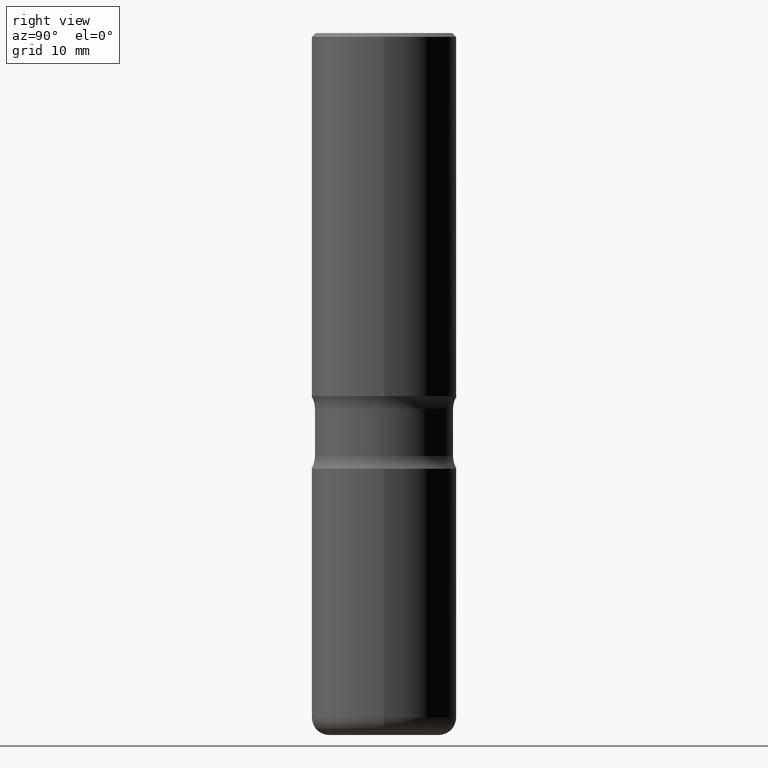
[diagram: clean part render]
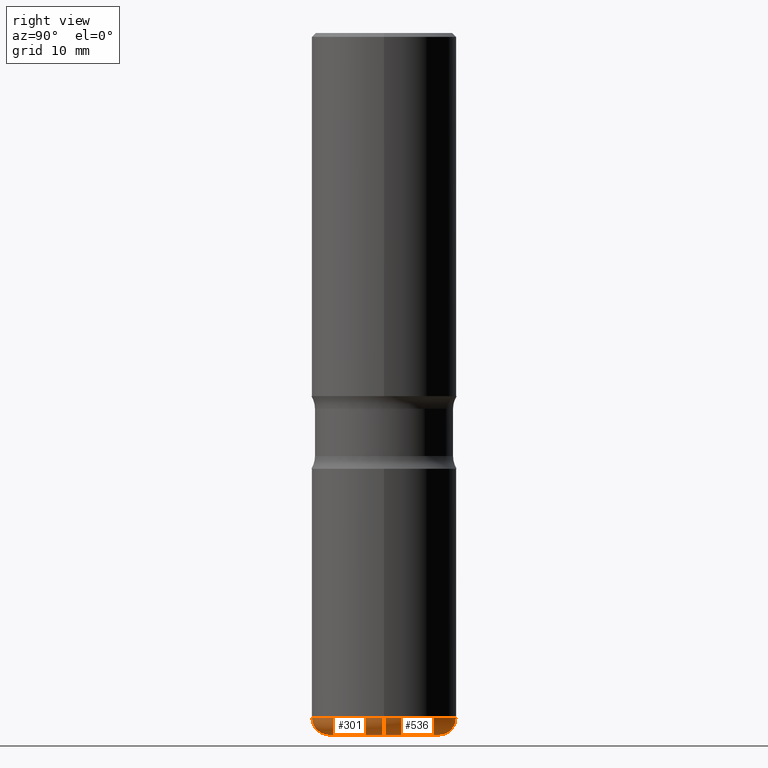
[diagram: same view with one multi-face feature highlighted, each face labeled with its STEP entity id]
A machine part, right view. The highlighted faces form ONE feature: a constant-radius fillet chain: 2 tangent blend faces with common blend radius 2.286 mm. The faces share edges in the B-rep.
Their STEP definitions:
[1] entity #536 (Torus):
#17 = EDGE_CURVE ( 'NONE', #92, #85, #174, .T. ) ;
#22 = CARTESIAN_POINT ( 'NONE',  ( -0.3750000000000002220, -9.677851273710145206E-15, -3.535000000000000586 ) ) ;
#39 = DIRECTION ( 'NONE',  ( -2.445468806185136597E-29, 3.491481338843145583E-15, 1.000000000000000000 ) ) ;
#41 = CIRCLE ( 'NONE', #168, 0.2850000000000004197 ) ;
#45 = DIRECTION ( 'NONE',  ( 1.000000000000000000, -6.982962677686265922E-15, 0.000000000000000000 ) ) ;
#52 = CIRCLE ( 'NONE', #110, 0.08999999999999962197 ) ;
#61 = DIRECTION ( 'NONE',  ( 1.000000000000000000, -6.982962677686276177E-15, 0.000000000000000000 ) ) ;
#62 = TOROIDAL_SURFACE ( 'NONE', #361, 0.2850000000000004197, 0.08999999999999963585 ) ;
#66 = CARTESIAN_POINT ( 'NONE',  ( 0.2850000000000004197, -1.433253089595111070E-14, -3.535000000000000586 ) ) ;
#69 = DIRECTION ( 'NONE',  ( -2.445468806185136597E-29, 3.491481338843145583E-15, 1.000000000000000000 ) ) ;
#85 = VERTEX_POINT ( 'NONE', #22 ) ;
#92 = VERTEX_POINT ( 'NONE', #206 ) ;
#110 = AXIS2_PLACEMENT_3D ( 'NONE', #366, #376, #560 ) ;
#146 = DIRECTION ( 'NONE',  ( 1.000000000000000000, -6.982962677686267499E-15, 4.883557194083113462E-29 ) ) ;
#150 = CARTESIAN_POINT ( 'NONE',  ( 8.644732229864458497E-29, -1.234238653281052248E-14, -3.535000000000000586 ) ) ;
#152 = CARTESIAN_POINT ( 'NONE',  ( 8.644732229864458497E-29, -1.234238653281052248E-14, -3.535000000000000586 ) ) ;
#168 = AXIS2_PLACEMENT_3D ( 'NONE', #415, #39, #373 ) ;
#174 = CIRCLE ( 'NONE', #400, 0.3750000000000003886 ) ;
#175 = CARTESIAN_POINT ( 'NONE',  ( -0.2850000000000004197, -1.015471216505013142E-14, -3.624999999999999556 ) ) ;
#184 = CIRCLE ( 'NONE', #471, 0.08999999999999962197 ) ;
#205 = VERTEX_POINT ( 'NONE', #249 ) ;
#206 = CARTESIAN_POINT ( 'NONE',  ( 0.3750000000000002220, -1.496099753694287407E-14, -3.535000000000000586 ) ) ;
#234 = EDGE_CURVE ( 'NONE', #433, #85, #52, .T. ) ;
#249 = CARTESIAN_POINT ( 'NONE',  ( 0.2850000000000004197, -1.464676421644699081E-14, -3.624999999999999556 ) ) ;
#266 = EDGE_CURVE ( 'NONE', #205, #433, #41, .T. ) ;
#270 = DIRECTION ( 'NONE',  ( -6.982962677686266711E-15, -1.000000000000000000, 3.491481338843145583E-15 ) ) ;
#336 = ORIENTED_EDGE ( 'NONE', *, *, #520, .F. ) ;
#361 = AXIS2_PLACEMENT_3D ( 'NONE', #150, #69, #146 ) ;
#366 = CARTESIAN_POINT ( 'NONE',  ( -0.2850000000000004197, -1.031733973589423436E-14, -3.535000000000000586 ) ) ;
#373 = DIRECTION ( 'NONE',  ( 1.000000000000000000, -6.982962677686264344E-15, 0.000000000000000000 ) ) ;
#376 = DIRECTION ( 'NONE',  ( 7.105427357601001859E-15, 1.000000000000000000, -3.491481338843145583E-15 ) ) ;
#392 = FACE_OUTER_BOUND ( 'NONE', #498, .T. ) ;
#400 = AXIS2_PLACEMENT_3D ( 'NONE', #152, #559, #45 ) ;
#403 = ORIENTED_EDGE ( 'NONE', *, *, #234, .T. ) ;
#408 = ORIENTED_EDGE ( 'NONE', *, *, #266, .T. ) ;
#415 = CARTESIAN_POINT ( 'NONE',  ( 8.864824422421120163E-29, -1.265661985330640259E-14, -3.624999999999999556 ) ) ;
#433 = VERTEX_POINT ( 'NONE', #175 ) ;
#471 = AXIS2_PLACEMENT_3D ( 'NONE', #66, #270, #61 ) ;
#476 = ORIENTED_EDGE ( 'NONE', *, *, #17, .F. ) ;
#498 = EDGE_LOOP ( 'NONE', ( #408, #403, #476, #336 ) ) ;
#520 = EDGE_CURVE ( 'NONE', #205, #92, #184, .T. ) ;
#536 = ADVANCED_FACE ( 'NONE', ( #392 ), #62, .T. ) ;
#559 = DIRECTION ( 'NONE',  ( -2.445468806185136597E-29, 3.491481338843145583E-15, 1.000000000000000000 ) ) ;
#560 = DIRECTION ( 'NONE',  ( -1.000000000000000000, 7.105427357600998703E-15, 0.000000000000000000 ) ) ;
[2] entity #301 (Torus):
#22 = CARTESIAN_POINT ( 'NONE',  ( -0.3750000000000002220, -9.677851273710145206E-15, -3.535000000000000586 ) ) ;
#51 = EDGE_CURVE ( 'NONE', #85, #92, #390, .T. ) ;
#52 = CIRCLE ( 'NONE', #110, 0.08999999999999962197 ) ;
#61 = DIRECTION ( 'NONE',  ( 1.000000000000000000, -6.982962677686276177E-15, 0.000000000000000000 ) ) ;
#66 = CARTESIAN_POINT ( 'NONE',  ( 0.2850000000000004197, -1.433253089595111070E-14, -3.535000000000000586 ) ) ;
#85 = VERTEX_POINT ( 'NONE', #22 ) ;
#92 = VERTEX_POINT ( 'NONE', #206 ) ;
#93 = DIRECTION ( 'NONE',  ( 1.000000000000000000, -6.982962677686267499E-15, 4.883557194083113462E-29 ) ) ;
#98 = DIRECTION ( 'NONE',  ( -2.445468806185136597E-29, 3.491481338843145583E-15, 1.000000000000000000 ) ) ;
#110 = AXIS2_PLACEMENT_3D ( 'NONE', #366, #376, #560 ) ;
#175 = CARTESIAN_POINT ( 'NONE',  ( -0.2850000000000004197, -1.015471216505013142E-14, -3.624999999999999556 ) ) ;
#184 = CIRCLE ( 'NONE', #471, 0.08999999999999962197 ) ;
#196 = CARTESIAN_POINT ( 'NONE',  ( 8.644732229864458497E-29, -1.234238653281052248E-14, -3.535000000000000586 ) ) ;
#205 = VERTEX_POINT ( 'NONE', #249 ) ;
#206 = CARTESIAN_POINT ( 'NONE',  ( 0.3750000000000002220, -1.496099753694287407E-14, -3.535000000000000586 ) ) ;
#223 = ORIENTED_EDGE ( 'NONE', *, *, #51, .F. ) ;
#226 = ORIENTED_EDGE ( 'NONE', *, *, #309, .T. ) ;
#231 = AXIS2_PLACEMENT_3D ( 'NONE', #349, #98, #344 ) ;
#234 = EDGE_CURVE ( 'NONE', #433, #85, #52, .T. ) ;
#249 = CARTESIAN_POINT ( 'NONE',  ( 0.2850000000000004197, -1.464676421644699081E-14, -3.624999999999999556 ) ) ;
#259 = ORIENTED_EDGE ( 'NONE', *, *, #520, .T. ) ;
#263 = DIRECTION ( 'NONE',  ( -2.445468806185136597E-29, 3.491481338843145583E-15, 1.000000000000000000 ) ) ;
#270 = DIRECTION ( 'NONE',  ( -6.982962677686266711E-15, -1.000000000000000000, 3.491481338843145583E-15 ) ) ;
#298 = CARTESIAN_POINT ( 'NONE',  ( 8.644732229864458497E-29, -1.234238653281052248E-14, -3.535000000000000586 ) ) ;
#301 = ADVANCED_FACE ( 'NONE', ( #523 ), #333, .T. ) ;
#309 = EDGE_CURVE ( 'NONE', #433, #205, #473, .T. ) ;
#331 = AXIS2_PLACEMENT_3D ( 'NONE', #196, #553, #512 ) ;
#333 = TOROIDAL_SURFACE ( 'NONE', #525, 0.2850000000000004197, 0.08999999999999963585 ) ;
#344 = DIRECTION ( 'NONE',  ( 1.000000000000000000, -6.982962677686264344E-15, 0.000000000000000000 ) ) ;
#349 = CARTESIAN_POINT ( 'NONE',  ( 8.864824422421120163E-29, -1.265661985330640259E-14, -3.624999999999999556 ) ) ;
#366 = CARTESIAN_POINT ( 'NONE',  ( -0.2850000000000004197, -1.031733973589423436E-14, -3.535000000000000586 ) ) ;
#376 = DIRECTION ( 'NONE',  ( 7.105427357601001859E-15, 1.000000000000000000, -3.491481338843145583E-15 ) ) ;
#390 = CIRCLE ( 'NONE', #331, 0.3750000000000003886 ) ;
#395 = EDGE_LOOP ( 'NONE', ( #501, #226, #259, #223 ) ) ;
#433 = VERTEX_POINT ( 'NONE', #175 ) ;
#471 = AXIS2_PLACEMENT_3D ( 'NONE', #66, #270, #61 ) ;
#473 = CIRCLE ( 'NONE', #231, 0.2850000000000004197 ) ;
#501 = ORIENTED_EDGE ( 'NONE', *, *, #234, .F. ) ;
#512 = DIRECTION ( 'NONE',  ( 1.000000000000000000, -6.982962677686265922E-15, 0.000000000000000000 ) ) ;
#520 = EDGE_CURVE ( 'NONE', #205, #92, #184, .T. ) ;
#523 = FACE_OUTER_BOUND ( 'NONE', #395, .T. ) ;
#525 = AXIS2_PLACEMENT_3D ( 'NONE', #298, #263, #93 ) ;
#553 = DIRECTION ( 'NONE',  ( -2.445468806185136597E-29, 3.491481338843145583E-15, 1.000000000000000000 ) ) ;
#560 = DIRECTION ( 'NONE',  ( -1.000000000000000000, 7.105427357600998703E-15, 0.000000000000000000 ) ) ;